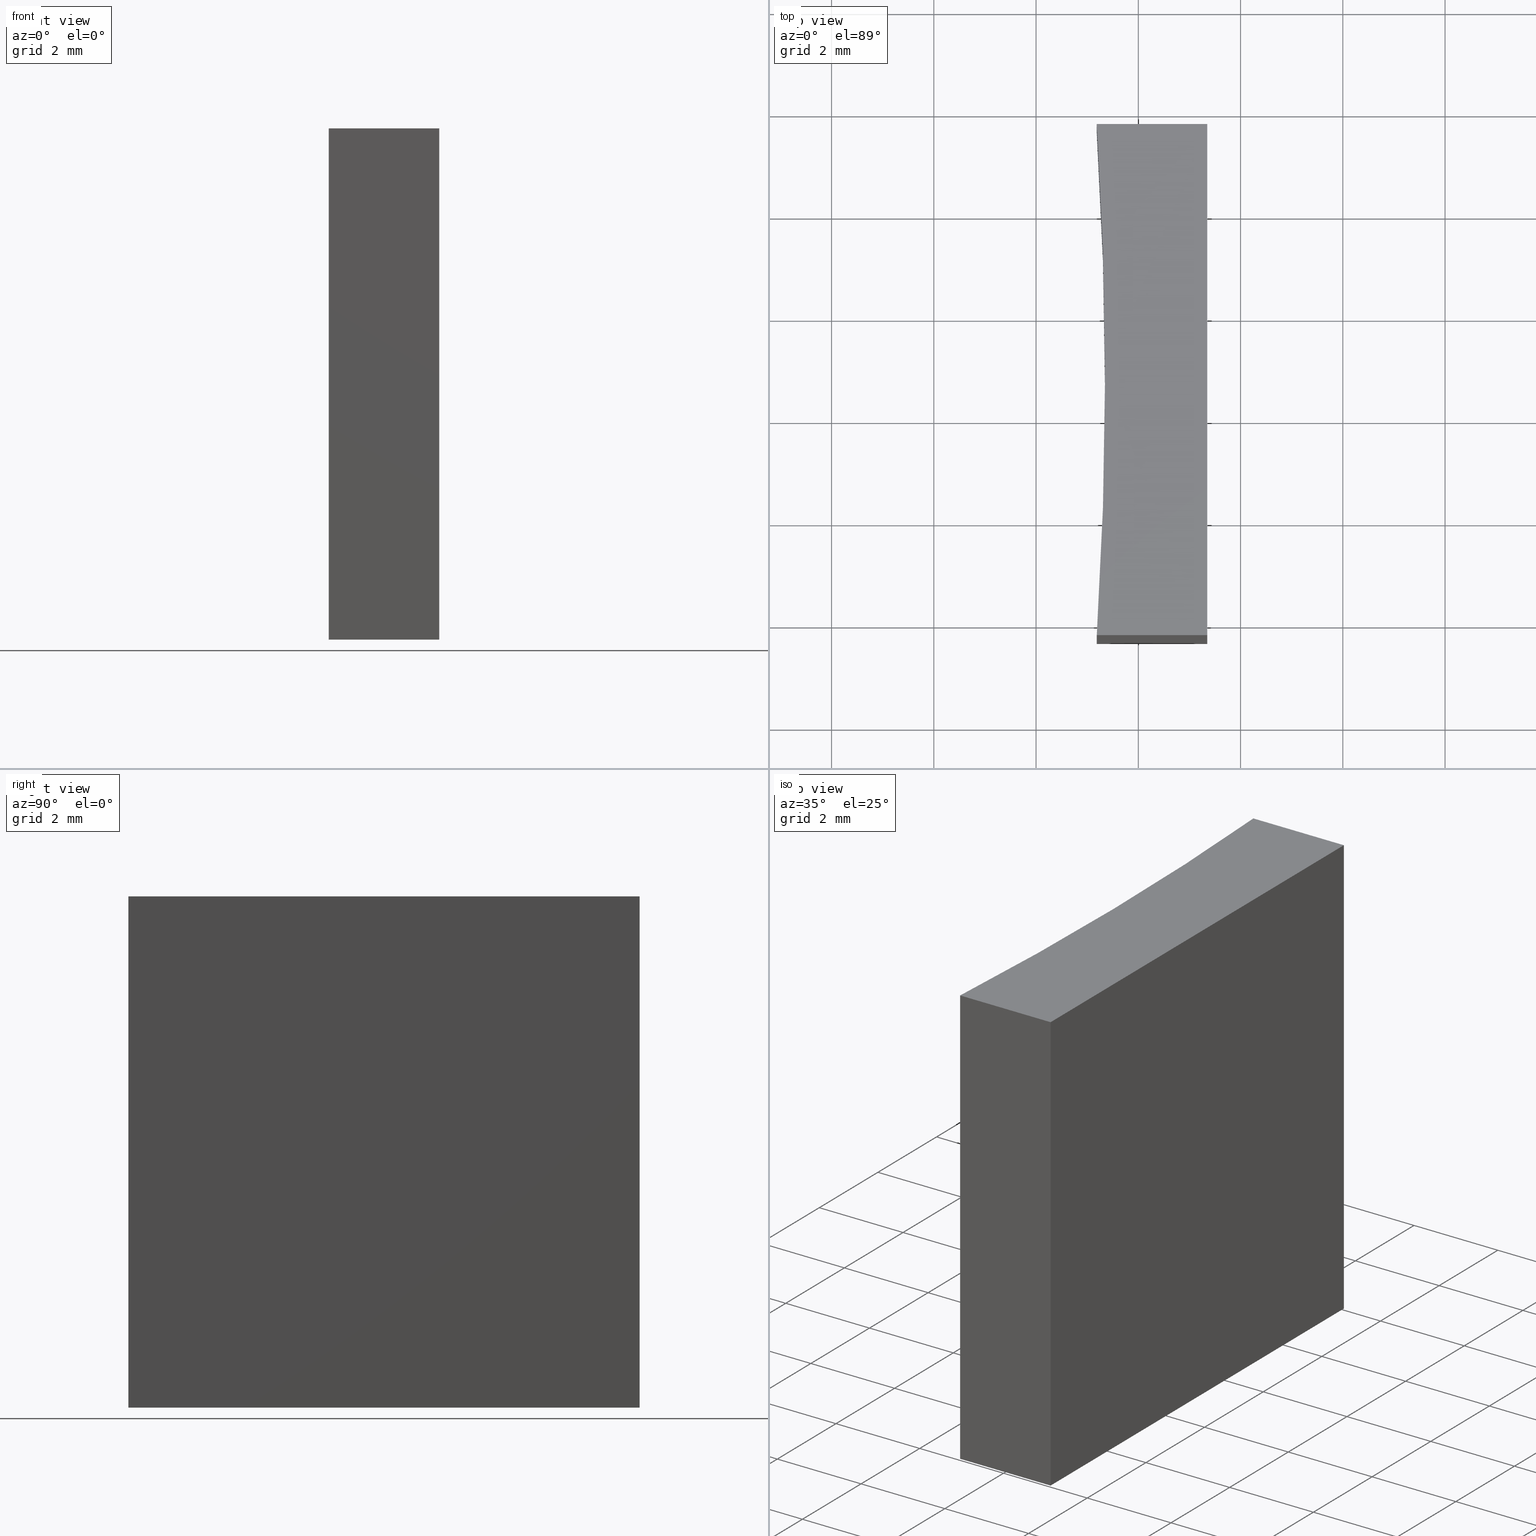
[diagram: canonical four-view strip — front | top / right | iso, engineering-drawing reading convention]
A machine part, canonical four-view strip (front | top / right | iso — engineering-drawing reading convention). The complete STEP part file that produces these views, byte-faithful:
ISO-10303-21;
HEADER;
FILE_DESCRIPTION (( 'STEP AP203' ),
    '1' );
FILE_NAME ('155569.STEP',
    '2024-05-13T06:00:04',
    ( '' ),
    ( '' ),
    'SwSTEP 2.0',
    'SolidWorks 2020',
    '' );
FILE_SCHEMA (( 'CONFIG_CONTROL_DESIGN' ));
ENDSEC;

DATA;
#1 = DIRECTION ( 'NONE',  ( 0.000000000000000000, 1.000000000000000000, 0.000000000000000000 ) ) ;
#2 = LINE ( 'NONE', #77, #76 ) ;
#3 = EDGE_LOOP ( 'NONE', ( #52, #39, #119, #96 ) ) ;
#4 = FACE_OUTER_BOUND ( 'NONE', #208, .T. ) ;
#5 = CARTESIAN_POINT ( 'NONE',  ( -16.81205432023612190, 23.68283811033197850, 10.00000000000000000 ) ) ;
#6 = CARTESIAN_POINT ( 'NONE',  ( -14.65205432023611998, 23.68283811033197850, 10.00000000000000000 ) ) ;
#7 = DIRECTION ( 'NONE',  ( 1.734723475976806108E-16, -1.000000000000000000, 0.000000000000000000 ) ) ;
#8 = CARTESIAN_POINT ( 'NONE',  ( -94.20070012826145955, 18.68283811033194297, 0.000000000000000000 ) ) ;
#9 = PERSON_AND_ORGANIZATION_ROLE ( 'creator' ) ;
#10 = CALENDAR_DATE ( 2024, 13, 5 ) ;
#11 = DATE_AND_TIME ( #181, #66 ) ;
#12 = ORIENTED_EDGE ( 'NONE', *, *, #209, .T. ) ;
#13 =( GEOMETRIC_REPRESENTATION_CONTEXT ( 3 ) GLOBAL_UNCERTAINTY_ASSIGNED_CONTEXT ( ( #157 ) ) GLOBAL_UNIT_ASSIGNED_CONTEXT ( ( #139, #160, #211 ) ) REPRESENTATION_CONTEXT ( 'NONE', 'WORKASPACE' ) );
#14 = AXIS2_PLACEMENT_3D ( 'NONE', #132, #1, #206 ) ;
#15 = PRODUCT_DEFINITION_FORMATION_WITH_SPECIFIED_SOURCE ( '�κ�', '', #54, .NOT_KNOWN. ) ;
#16 = APPROVAL_ROLE ( '' ) ;
#17 = ADVANCED_FACE ( 'NONE', ( #190 ), #72, .F. ) ;
#18 = EDGE_LOOP ( 'NONE', ( #91, #205, #227, #172 ) ) ;
#19 = EDGE_CURVE ( 'NONE', #156, #158, #20, .T. ) ;
#20 = LINE ( 'NONE', #73, #142 ) ;
#21 = ORIENTED_EDGE ( 'NONE', *, *, #28, .T. ) ;
#22 = CARTESIAN_POINT ( 'NONE',  ( -94.20070012826145955, 18.68283811033194297, 0.000000000000000000 ) ) ;
#23 = FACE_OUTER_BOUND ( 'NONE', #3, .T. ) ;
#24 = CARTESIAN_POINT ( 'NONE',  ( -16.81205432023612190, 23.68283811033197850, 10.00000000000000000 ) ) ;
#25 = VECTOR ( 'NONE', #176, 1000.000000000000000 ) ;
#26 = APPLICATION_CONTEXT ( 'configuration controlled 3d designs of mechanical parts and assemblies' ) ;
#27 = CARTESIAN_POINT ( 'NONE',  ( -14.65205432023611998, 23.68283811033197850, 0.000000000000000000 ) ) ;
#28 = EDGE_CURVE ( 'NONE', #173, #170, #228, .T. ) ;
#29 = CARTESIAN_POINT ( 'NONE',  ( -16.81205432023611479, 13.68283811033197139, 10.00000000000000000 ) ) ;
#30 = SECURITY_CLASSIFICATION_LEVEL ( 'unclassified' ) ;
#31 = APPROVAL_DATE_TIME ( #168, #165 ) ;
#32 = AXIS2_PLACEMENT_3D ( 'NONE', #116, #58, #99 ) ;
#33 = DIRECTION ( 'NONE',  ( 0.000000000000000000, 0.000000000000000000, 1.000000000000000000 ) ) ;
#34 = CC_DESIGN_PERSON_AND_ORGANIZATION_ASSIGNMENT ( #90, #9, ( #80 ) ) ;
#35 = ORIENTED_EDGE ( 'NONE', *, *, #196, .F. ) ;
#36 = ORIENTED_EDGE ( 'NONE', *, *, #19, .T. ) ;
#37 = ORIENTED_EDGE ( 'NONE', *, *, #209, .F. ) ;
#38 = ADVANCED_FACE ( 'NONE', ( #40 ), #133, .F. ) ;
#39 = ORIENTED_EDGE ( 'NONE', *, *, #196, .T. ) ;
#40 = FACE_OUTER_BOUND ( 'NONE', #117, .T. ) ;
#41 = DIRECTION ( 'NONE',  ( -0.000000000000000000, -0.000000000000000000, -1.000000000000000000 ) ) ;
#42 = EDGE_CURVE ( 'NONE', #100, #156, #74, .T. ) ;
#43 = DIRECTION ( 'NONE',  ( -0.000000000000000000, -0.000000000000000000, -1.000000000000000000 ) ) ;
#44 = VECTOR ( 'NONE', #137, 1000.000000000000000 ) ;
#45 = DIRECTION ( 'NONE',  ( -0.000000000000000000, -0.000000000000000000, -1.000000000000000000 ) ) ;
#46 = COORDINATED_UNIVERSAL_TIME_OFFSET ( 8, 0, .AHEAD. ) ;
#47 = APPROVAL_PERSON_ORGANIZATION ( #145, #217, #233 ) ;
#48 = PERSON_AND_ORGANIZATION ( #200, #75 ) ;
#49 = CIRCLE ( 'NONE', #122, 77.54999999999999716 ) ;
#50 = DATE_AND_TIME ( #68, #159 ) ;
#51 = APPROVAL_STATUS ( 'not_yet_approved' ) ;
#52 = ORIENTED_EDGE ( 'NONE', *, *, #154, .T. ) ;
#53 = COORDINATED_UNIVERSAL_TIME_OFFSET ( 8, 0, .AHEAD. ) ;
#54 = PRODUCT ( '155569', '155569', '', ( #146 ) ) ;
#55 = VERTEX_POINT ( 'NONE', #175 ) ;
#56 = DIRECTION ( 'NONE',  ( -0.000000000000000000, -0.000000000000000000, -1.000000000000000000 ) ) ;
#57 = ORIENTED_EDGE ( 'NONE', *, *, #28, .F. ) ;
#58 = DIRECTION ( 'NONE',  ( 0.000000000000000000, -1.000000000000000000, 0.000000000000000000 ) ) ;
#59 = CARTESIAN_POINT ( 'NONE',  ( -94.20070012826145955, 18.68283811033194297, 10.00000000000000000 ) ) ;
#60 = CC_DESIGN_PERSON_AND_ORGANIZATION_ASSIGNMENT ( #110, #218, ( #15 ) ) ;
#61 = LINE ( 'NONE', #192, #219 ) ;
#62 = CARTESIAN_POINT ( 'NONE',  ( -94.20070012826145955, 18.68283811033194297, 10.00000000000000000 ) ) ;
#63 = CARTESIAN_POINT ( 'NONE',  ( -16.81205432023611479, 13.68283811033197139, 0.000000000000000000 ) ) ;
#64 = CC_DESIGN_DATE_AND_TIME_ASSIGNMENT ( #127, #88, ( #80 ) ) ;
#65 = DIRECTION ( 'NONE',  ( -0.000000000000000000, -0.000000000000000000, -1.000000000000000000 ) ) ;
#66 = LOCAL_TIME ( 14, 0, 4.000000000000000000, #204 ) ;
#67 = APPLICATION_PROTOCOL_DEFINITION ( 'international standard', 'config_control_design', 1994, #26 ) ;
#68 = CALENDAR_DATE ( 2024, 13, 5 ) ;
#69 = ORIENTED_EDGE ( 'NONE', *, *, #223, .F. ) ;
#70 = COORDINATED_UNIVERSAL_TIME_OFFSET ( 8, 0, .AHEAD. ) ;
#71 = APPROVAL ( #51, 'δָ��' ) ;
#72 = PLANE ( 'NONE',  #14 ) ;
#73 = CARTESIAN_POINT ( 'NONE',  ( -16.81205432023612190, 23.68283811033197850, 0.000000000000000000 ) ) ;
#74 = LINE ( 'NONE', #153, #44 ) ;
#75 = ORGANIZATION ( 'δָ��', 'δָ��', '' ) ;
#76 = VECTOR ( 'NONE', #138, 1000.000000000000000 ) ;
#77 = CARTESIAN_POINT ( 'NONE',  ( -14.65205432023611998, 23.68283811033197850, 10.00000000000000000 ) ) ;
#78 = ORIENTED_EDGE ( 'NONE', *, *, #19, .F. ) ;
#79 = MANIFOLD_SOLID_BREP ( '͹̨-����1', #184 ) ;
#80 = PRODUCT_DEFINITION ( 'δ֪', '', #15, #194 ) ;
#81 = APPROVAL_PERSON_ORGANIZATION ( #201, #71, #16 ) ;
#82 = AXIS2_PLACEMENT_3D ( 'NONE', #164, #191, #87 ) ;
#83 = DIRECTION ( 'NONE',  ( -0.000000000000000000, -0.000000000000000000, -1.000000000000000000 ) ) ;
#84 = EDGE_CURVE ( 'NONE', #112, #55, #2, .T. ) ;
#85 = DIRECTION ( 'NONE',  ( 1.000000000000000000, 0.000000000000000000, 0.000000000000000000 ) ) ;
#86 = PLANE ( 'NONE',  #82 ) ;
#87 = DIRECTION ( 'NONE',  ( 1.000000000000000000, 0.000000000000000000, -0.000000000000000000 ) ) ;
#88 = DATE_TIME_ROLE ( 'creation_date' ) ;
#89 = APPROVAL_ROLE ( '' ) ;
#90 = PERSON_AND_ORGANIZATION ( #200, #75 ) ;
#91 = ORIENTED_EDGE ( 'NONE', *, *, #42, .T. ) ;
#92 = CC_DESIGN_APPROVAL ( #165, ( #80 ) ) ;
#93 = DIRECTION ( 'NONE',  ( 1.000000000000000000, 0.000000000000000000, 0.000000000000000000 ) ) ;
#94 = CALENDAR_DATE ( 2024, 13, 5 ) ;
#95 = LOCAL_TIME ( 14, 0, 4.000000000000000000, #147 ) ;
#96 = ORIENTED_EDGE ( 'NONE', *, *, #109, .T. ) ;
#97 = ORIENTED_EDGE ( 'NONE', *, *, #223, .T. ) ;
#98 = ORIENTED_EDGE ( 'NONE', *, *, #109, .F. ) ;
#99 = DIRECTION ( 'NONE',  ( 0.000000000000000000, -0.000000000000000000, -1.000000000000000000 ) ) ;
#100 = VERTEX_POINT ( 'NONE', #140 ) ;
#101 = DIRECTION ( 'NONE',  ( 1.000000000000000000, 0.000000000000000000, 0.000000000000000000 ) ) ;
#102 = LINE ( 'NONE', #24, #25 ) ;
#103 = CIRCLE ( 'NONE', #234, 77.54999999999999716 ) ;
#104 = DIRECTION ( 'NONE',  ( 1.000000000000000000, 0.000000000000000000, 0.000000000000000000 ) ) ;
#105 = DIRECTION ( 'NONE',  ( 1.000000000000000000, 0.000000000000000000, -0.000000000000000000 ) ) ;
#106 = SHAPE_DEFINITION_REPRESENTATION ( #136, #237 ) ;
#107 = EDGE_CURVE ( 'NONE', #148, #158, #178, .T. ) ;
#108 = PERSON_AND_ORGANIZATION ( #200, #75 ) ;
#109 = EDGE_CURVE ( 'NONE', #55, #148, #102, .T. ) ;
#110 = PERSON_AND_ORGANIZATION ( #200, #75 ) ;
#111 = CARTESIAN_POINT ( 'NONE',  ( 0.000000000000000000, 0.000000000000000000, 0.000000000000000000 ) ) ;
#112 = VERTEX_POINT ( 'NONE', #210 ) ;
#113 = CC_DESIGN_SECURITY_CLASSIFICATION ( #144, ( #15 ) ) ;
#114 = ORIENTED_EDGE ( 'NONE', *, *, #203, .F. ) ;
#115 = VECTOR ( 'NONE', #125, 1000.000000000000000 ) ;
#116 = CARTESIAN_POINT ( 'NONE',  ( -16.81205432023612190, 23.68283811033197850, 10.00000000000000000 ) ) ;
#117 = EDGE_LOOP ( 'NONE', ( #36, #238, #98, #189 ) ) ;
#118 = CC_DESIGN_PERSON_AND_ORGANIZATION_ASSIGNMENT ( #186, #130, ( #15 ) ) ;
#119 = ORIENTED_EDGE ( 'NONE', *, *, #84, .T. ) ;
#120 = CARTESIAN_POINT ( 'NONE',  ( -16.81205432023611479, 13.68283811033197139, 0.000000000000000000 ) ) ;
#121 = APPLICATION_CONTEXT ( 'configuration controlled 3d designs of mechanical parts and assemblies' ) ;
#122 = AXIS2_PLACEMENT_3D ( 'NONE', #59, #41, #229 ) ;
#123 = LINE ( 'NONE', #230, #115 ) ;
#124 = LOCAL_TIME ( 14, 0, 4.000000000000000000, #46 ) ;
#125 = DIRECTION ( 'NONE',  ( -0.000000000000000000, -0.000000000000000000, -1.000000000000000000 ) ) ;
#126 = ADVANCED_FACE ( 'NONE', ( #4 ), #213, .F. ) ;
#127 = DATE_AND_TIME ( #10, #124 ) ;
#128 = PERSON_AND_ORGANIZATION_ROLE ( 'classification_officer' ) ;
#129 = AXIS2_PLACEMENT_3D ( 'NONE', #62, #45, #199 ) ;
#130 = PERSON_AND_ORGANIZATION_ROLE ( 'design_supplier' ) ;
#131 = APPROVAL_PERSON_ORGANIZATION ( #108, #165, #89 ) ;
#132 = CARTESIAN_POINT ( 'NONE',  ( -16.81205432023611479, 13.68283811033197139, 10.00000000000000000 ) ) ;
#133 = PLANE ( 'NONE',  #32 ) ;
#134 = ORIENTED_EDGE ( 'NONE', *, *, #42, .F. ) ;
#135 = PRODUCT_RELATED_PRODUCT_CATEGORY ( 'detail', '', ( #54 ) ) ;
#136 = PRODUCT_DEFINITION_SHAPE ( 'NONE', 'NONE',  #80 ) ;
#137 = DIRECTION ( 'NONE',  ( -1.734723475976806108E-16, 1.000000000000000000, -0.000000000000000000 ) ) ;
#138 = DIRECTION ( 'NONE',  ( -1.734723475976806108E-16, 1.000000000000000000, -0.000000000000000000 ) ) ;
#139 =( LENGTH_UNIT ( ) NAMED_UNIT ( * ) SI_UNIT ( .MILLI., .METRE. ) );
#140 = CARTESIAN_POINT ( 'NONE',  ( -14.65205432023611820, 13.68283811033197139, 0.000000000000000000 ) ) ;
#141 = FACE_OUTER_BOUND ( 'NONE', #150, .T. ) ;
#142 = VECTOR ( 'NONE', #226, 1000.000000000000000 ) ;
#143 = CYLINDRICAL_SURFACE ( 'NONE', #129, 77.54999999999998295 ) ;
#144 = SECURITY_CLASSIFICATION ( '', '', #30 ) ;
#145 = PERSON_AND_ORGANIZATION ( #200, #75 ) ;
#146 = MECHANICAL_CONTEXT ( 'NONE', #26, 'mechanical' ) ;
#147 = COORDINATED_UNIVERSAL_TIME_OFFSET ( 8, 0, .AHEAD. ) ;
#148 = VERTEX_POINT ( 'NONE', #163 ) ;
#149 = ADVANCED_FACE ( 'NONE', ( #180 ), #162, .F. ) ;
#150 = EDGE_LOOP ( 'NONE', ( #97, #57, #239, #225 ) ) ;
#151 = CARTESIAN_POINT ( 'NONE',  ( -16.81205432023611479, 13.68283811033197139, 10.00000000000000000 ) ) ;
#152 = AXIS2_PLACEMENT_3D ( 'NONE', #111, #33, #93 ) ;
#153 = CARTESIAN_POINT ( 'NONE',  ( -14.65205432023611998, 23.68283811033197850, 0.000000000000000000 ) ) ;
#154 = EDGE_CURVE ( 'NONE', #148, #173, #49, .T. ) ;
#155 = VECTOR ( 'NONE', #56, 1000.000000000000000 ) ;
#156 = VERTEX_POINT ( 'NONE', #27 ) ;
#157 = UNCERTAINTY_MEASURE_WITH_UNIT (LENGTH_MEASURE( 1.000000000000000082E-05 ), #139, 'distance_accuracy_value', 'NONE');
#158 = VERTEX_POINT ( 'NONE', #198 ) ;
#159 = LOCAL_TIME ( 14, 0, 4.000000000000000000, #53 ) ;
#160 =( NAMED_UNIT ( * ) PLANE_ANGLE_UNIT ( ) SI_UNIT ( $, .RADIAN. ) );
#161 = AXIS2_PLACEMENT_3D ( 'NONE', #8, #166, #105 ) ;
#162 = PLANE ( 'NONE',  #195 ) ;
#163 = CARTESIAN_POINT ( 'NONE',  ( -16.81205432023612190, 23.68283811033197850, 10.00000000000000000 ) ) ;
#164 = CARTESIAN_POINT ( 'NONE',  ( -94.20070012826145955, 18.68283811033194297, 10.00000000000000000 ) ) ;
#165 = APPROVAL ( #182, 'δָ��' ) ;
#166 = DIRECTION ( 'NONE',  ( 0.000000000000000000, 0.000000000000000000, 1.000000000000000000 ) ) ;
#167 = APPROVAL_DATE_TIME ( #50, #217 ) ;
#168 = DATE_AND_TIME ( #183, #197 ) ;
#169 = DATE_TIME_ROLE ( 'classification_date' ) ;
#170 = VERTEX_POINT ( 'NONE', #120 ) ;
#171 = PERSON_AND_ORGANIZATION_ROLE ( 'design_owner' ) ;
#172 = ORIENTED_EDGE ( 'NONE', *, *, #203, .T. ) ;
#173 = VERTEX_POINT ( 'NONE', #29 ) ;
#174 = EDGE_CURVE ( 'NONE', #55, #156, #215, .T. ) ;
#175 = CARTESIAN_POINT ( 'NONE',  ( -14.65205432023611998, 23.68283811033197850, 10.00000000000000000 ) ) ;
#176 = DIRECTION ( 'NONE',  ( -1.000000000000000000, -0.000000000000000000, -0.000000000000000000 ) ) ;
#177 = CARTESIAN_POINT ( 'NONE',  ( -14.65205432023611998, 23.68283811033197850, 10.00000000000000000 ) ) ;
#178 = LINE ( 'NONE', #5, #214 ) ;
#179 = CC_DESIGN_PERSON_AND_ORGANIZATION_ASSIGNMENT ( #48, #128, ( #144 ) ) ;
#180 = FACE_OUTER_BOUND ( 'NONE', #18, .T. ) ;
#181 = CALENDAR_DATE ( 2024, 13, 5 ) ;
#182 = APPROVAL_STATUS ( 'not_yet_approved' ) ;
#183 = CALENDAR_DATE ( 2024, 13, 5 ) ;
#184 = CLOSED_SHELL ( 'NONE', ( #232, #17, #149, #38, #202, #126 ) ) ;
#185 = APPROVAL_STATUS ( 'not_yet_approved' ) ;
#186 = PERSON_AND_ORGANIZATION ( #200, #75 ) ;
#187 = CC_DESIGN_APPROVAL ( #217, ( #15 ) ) ;
#188 = VECTOR ( 'NONE', #43, 1000.000000000000000 ) ;
#189 = ORIENTED_EDGE ( 'NONE', *, *, #174, .T. ) ;
#190 = FACE_OUTER_BOUND ( 'NONE', #222, .T. ) ;
#191 = DIRECTION ( 'NONE',  ( 0.000000000000000000, 0.000000000000000000, 1.000000000000000000 ) ) ;
#192 = CARTESIAN_POINT ( 'NONE',  ( -16.81205432023611479, 13.68283811033197139, 10.00000000000000000 ) ) ;
#193 = DIRECTION ( 'NONE',  ( -1.000000000000000000, -1.734723475976806108E-16, 0.000000000000000000 ) ) ;
#194 = DESIGN_CONTEXT ( 'detailed design', #121, 'design' ) ;
#195 = AXIS2_PLACEMENT_3D ( 'NONE', #6, #193, #7 ) ;
#196 = EDGE_CURVE ( 'NONE', #173, #112, #61, .T. ) ;
#197 = LOCAL_TIME ( 14, 0, 4.000000000000000000, #70 ) ;
#198 = CARTESIAN_POINT ( 'NONE',  ( -16.81205432023612190, 23.68283811033197850, 0.000000000000000000 ) ) ;
#199 = DIRECTION ( 'NONE',  ( -1.000000000000000000, 0.000000000000000000, 0.000000000000000000 ) ) ;
#200 = PERSON ( 'δָ��', 'δָ��', 'δָ��', ('δָ��'), ('δָ��'), ('δָ��') ) ;
#201 = PERSON_AND_ORGANIZATION ( #200, #75 ) ;
#202 = ADVANCED_FACE ( 'NONE', ( #23 ), #86, .T. ) ;
#203 = EDGE_CURVE ( 'NONE', #112, #100, #123, .T. ) ;
#204 = COORDINATED_UNIVERSAL_TIME_OFFSET ( 8, 0, .AHEAD. ) ;
#205 = ORIENTED_EDGE ( 'NONE', *, *, #174, .F. ) ;
#206 = DIRECTION ( 'NONE',  ( 0.000000000000000000, -0.000000000000000000, 1.000000000000000000 ) ) ;
#207 = VECTOR ( 'NONE', #85, 1000.000000000000000 ) ;
#208 = EDGE_LOOP ( 'NONE', ( #69, #78, #134, #37 ) ) ;
#209 = EDGE_CURVE ( 'NONE', #170, #100, #231, .T. ) ;
#210 = CARTESIAN_POINT ( 'NONE',  ( -14.65205432023611820, 13.68283811033197139, 10.00000000000000000 ) ) ;
#211 =( NAMED_UNIT ( * ) SI_UNIT ( $, .STERADIAN. ) SOLID_ANGLE_UNIT ( ) );
#212 = CC_DESIGN_PERSON_AND_ORGANIZATION_ASSIGNMENT ( #220, #171, ( #54 ) ) ;
#213 = PLANE ( 'NONE',  #161 ) ;
#214 = VECTOR ( 'NONE', #83, 1000.000000000000000 ) ;
#215 = LINE ( 'NONE', #177, #188 ) ;
#216 = CC_DESIGN_APPROVAL ( #71, ( #144 ) ) ;
#217 = APPROVAL ( #185, 'δָ��' ) ;
#218 = PERSON_AND_ORGANIZATION_ROLE ( 'creator' ) ;
#219 = VECTOR ( 'NONE', #101, 1000.000000000000000 ) ;
#220 = PERSON_AND_ORGANIZATION ( #200, #75 ) ;
#221 = APPROVAL_DATE_TIME ( #235, #71 ) ;
#222 = EDGE_LOOP ( 'NONE', ( #12, #114, #35, #21 ) ) ;
#223 = EDGE_CURVE ( 'NONE', #158, #170, #103, .T. ) ;
#224 = APPLICATION_PROTOCOL_DEFINITION ( 'international standard', 'config_control_design', 1994, #121 ) ;
#225 = ORIENTED_EDGE ( 'NONE', *, *, #107, .T. ) ;
#226 = DIRECTION ( 'NONE',  ( -1.000000000000000000, -0.000000000000000000, -0.000000000000000000 ) ) ;
#227 = ORIENTED_EDGE ( 'NONE', *, *, #84, .F. ) ;
#228 = LINE ( 'NONE', #151, #155 ) ;
#229 = DIRECTION ( 'NONE',  ( 1.000000000000000000, 0.000000000000000000, 0.000000000000000000 ) ) ;
#230 = CARTESIAN_POINT ( 'NONE',  ( -14.65205432023611820, 13.68283811033197139, 10.00000000000000000 ) ) ;
#231 = LINE ( 'NONE', #63, #207 ) ;
#232 = ADVANCED_FACE ( 'NONE', ( #141 ), #143, .F. ) ;
#233 = APPROVAL_ROLE ( '' ) ;
#234 = AXIS2_PLACEMENT_3D ( 'NONE', #22, #65, #104 ) ;
#235 = DATE_AND_TIME ( #94, #95 ) ;
#236 = CC_DESIGN_DATE_AND_TIME_ASSIGNMENT ( #11, #169, ( #144 ) ) ;
#237 = ADVANCED_BREP_SHAPE_REPRESENTATION ( '155569', ( #79, #152 ), #13 ) ;
#238 = ORIENTED_EDGE ( 'NONE', *, *, #107, .F. ) ;
#239 = ORIENTED_EDGE ( 'NONE', *, *, #154, .F. ) ;
ENDSEC;
END-ISO-10303-21;
